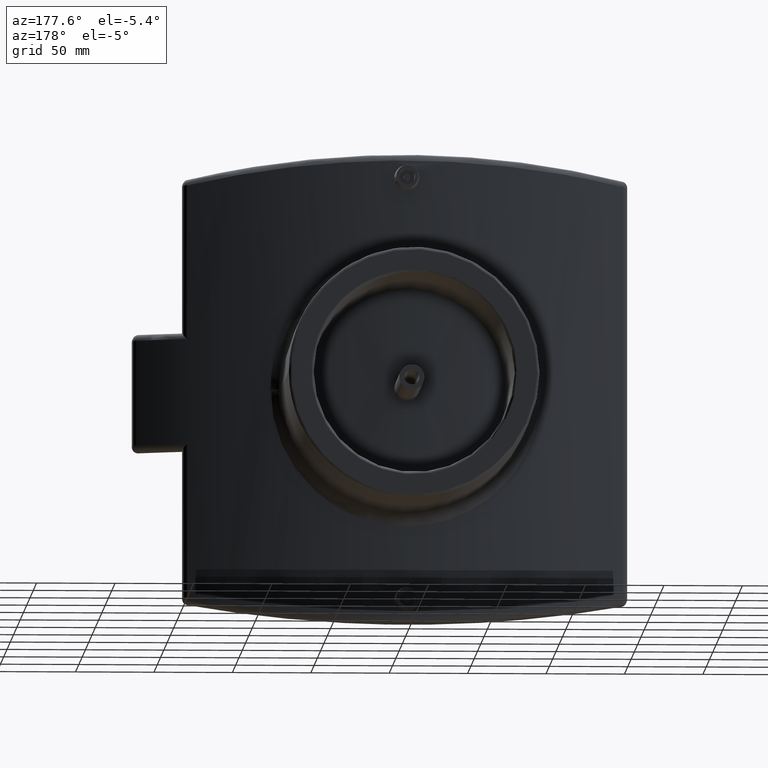
[diagram: clean part render]
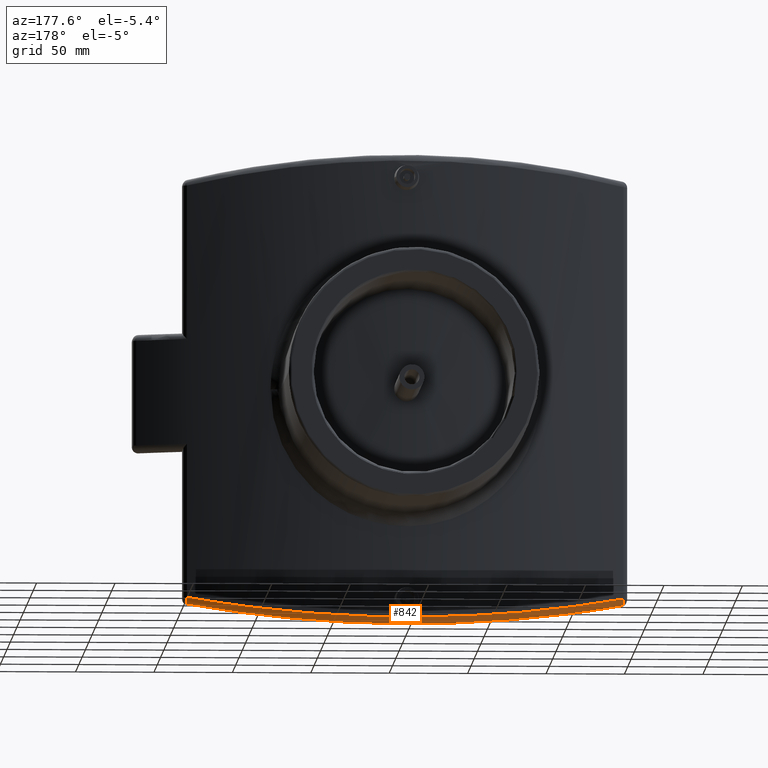
[diagram: same view with one face highlighted and labeled with its STEP entity id]
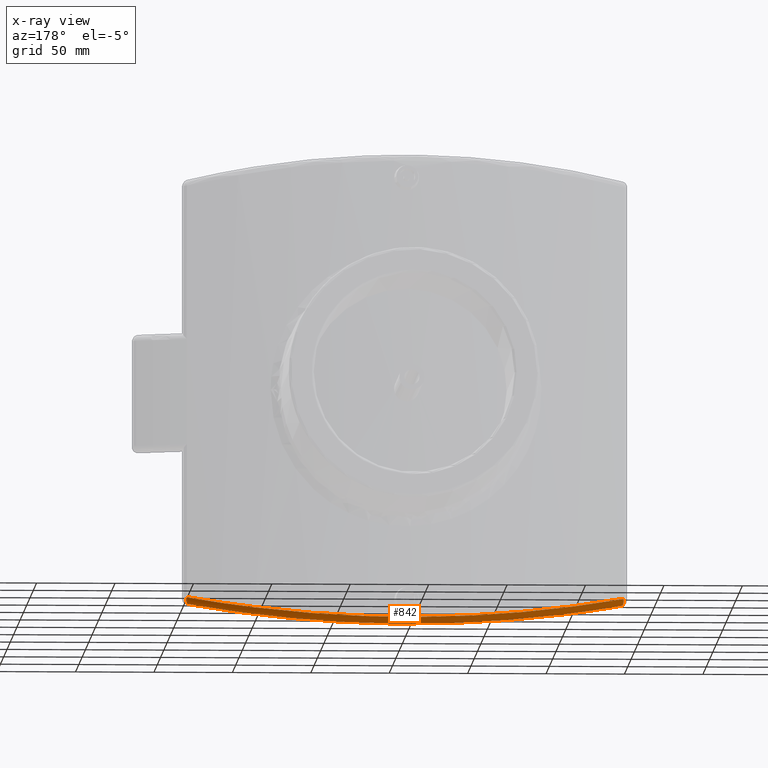
[diagram: x-ray of the same camera — body ghosted, the highlighted face saturated]
A machine part, auxiliary view. The second image highlights one B-rep face of the part: STEP entity #842.
The next image is the same camera in x-ray: the body ghosted, the highlighted face saturated — about 0% of this face is hidden behind the body in this view.
In plain terms, the highlighted face is a freeform B-spline surface patch.
Its self-contained STEP definition (entity closure, byte-faithful):
#90=B_SPLINE_SURFACE_WITH_KNOTS('',3,3,((#1820,#1821,#1822,#1823,#1824,
#1825,#1826,#1827,#1828,#1829),(#1830,#1831,#1832,#1833,#1834,#1835,#1836,
#1837,#1838,#1839),(#1840,#1841,#1842,#1843,#1844,#1845,#1846,#1847,#1848,
#1849),(#1850,#1851,#1852,#1853,#1854,#1855,#1856,#1857,#1858,#1859),(#1860,
#1861,#1862,#1863,#1864,#1865,#1866,#1867,#1868,#1869)),.UNSPECIFIED.,.F.,
 .F.,.F.,(4,1,4),(4,1,1,1,1,1,1,4),(0.,0.571428571428571,1.),(4.41877470251134,
8.45892502407081,12.4990753456303,16.5392256671897,20.5793759887492,24.6195263103087,
28.6596766318681,32.6998269534276),.UNSPECIFIED.);
#97=B_SPLINE_CURVE_WITH_KNOTS('',3,(#1581,#1582,#1583,#1584,#1585,#1586,
#1587,#1588,#1589,#1590),.UNSPECIFIED.,.F.,.F.,(4,1,1,1,1,1,1,4),(-32.6998269534276,
-28.6596766318681,-24.6195263103087,-20.5793759887492,-16.5392256671897,
-12.4990753456303,-8.45892502407081,-4.41877470251134),.UNSPECIFIED.);
#104=B_SPLINE_CURVE_WITH_KNOTS('',3,(#1870,#1871,#1872,#1873,#1874,#1875,
#1876,#1877,#1878,#1879),.UNSPECIFIED.,.F.,.F.,(4,1,1,1,1,1,1,4),(4.41877470251134,
8.45892502407081,12.4990753456303,16.5392256671897,20.5793759887492,24.6195263103087,
28.6596766318681,32.6998269534276),.UNSPECIFIED.);
#205=FACE_OUTER_BOUND('',#292,.T.);
#292=EDGE_LOOP('',(#648,#649,#650,#651));
#353=CIRCLE('',#925,4.00000000000005);
#360=CIRCLE('',#935,3.99999999999998);
#407=VERTEX_POINT('',#1578);
#408=VERTEX_POINT('',#1580);
#428=VERTEX_POINT('',#1787);
#435=VERTEX_POINT('',#1817);
#479=EDGE_CURVE('',#408,#407,#97,.T.);
#500=EDGE_CURVE('',#407,#428,#353,.F.);
#509=EDGE_CURVE('',#435,#408,#360,.F.);
#511=EDGE_CURVE('',#428,#435,#104,.T.);
#648=ORIENTED_EDGE('',*,*,#509,.T.);
#649=ORIENTED_EDGE('',*,*,#479,.T.);
#650=ORIENTED_EDGE('',*,*,#500,.T.);
#651=ORIENTED_EDGE('',*,*,#511,.T.);
#842=ADVANCED_FACE('',(#205),#90,.F.);
#925=AXIS2_PLACEMENT_3D('',#1788,#1096,#1097);
#935=AXIS2_PLACEMENT_3D('',#1818,#1117,#1118);
#1096=DIRECTION('center_axis',(0.924407265742533,-0.328842246100151,0.193220040943536));
#1097=DIRECTION('ref_axis',(0.335158150851585,0.942161883074107,0.));
#1117=DIRECTION('center_axis',(-0.924407265742516,-0.328842246100194,0.193220040943544));
#1118=DIRECTION('ref_axis',(-0.204598832189969,-1.77635683940026E-14,-0.978845911196702));
#1578=CARTESIAN_POINT('',(139.09063260341,390.997181475753,-131.757613074014));
#1580=CARTESIAN_POINT('',(-139.090632603403,390.997181475756,-131.757613074014));
#1581=CARTESIAN_POINT('Ctrl Pts',(-139.090632603403,390.997181475756,-131.757613074014));
#1582=CARTESIAN_POINT('Ctrl Pts',(-126.519711970547,395.469073821966,-134.359866740379));
#1583=CARTESIAN_POINT('Ctrl Pts',(-100.83419503984,403.23924471547,-138.938929959962));
#1584=CARTESIAN_POINT('Ctrl Pts',(-61.0304030310358,411.160253956869,-143.680393743336));
#1585=CARTESIAN_POINT('Ctrl Pts',(-20.4298369698615,415.166726763725,-146.100589001554));
#1586=CARTESIAN_POINT('Ctrl Pts',(20.4299098442966,415.167026397045,-146.100938434617));
#1587=CARTESIAN_POINT('Ctrl Pts',(61.0289804996759,411.160089339475,-143.680141816065));
#1588=CARTESIAN_POINT('Ctrl Pts',(100.833542230267,403.239687862737,-138.939302310592));
#1589=CARTESIAN_POINT('Ctrl Pts',(126.519619840074,395.469106595823,-134.359885811924));
#1590=CARTESIAN_POINT('Ctrl Pts',(139.09063260341,390.997181475753,-131.757613074014));
#1787=CARTESIAN_POINT('',(138.568395328763,387.228533943457,-135.672996718801));
#1788=CARTESIAN_POINT('Origin',(137.750000000004,387.228533943457,-131.757613074014));
#1817=CARTESIAN_POINT('',(-138.568395328756,387.22853394346,-135.672996718801));
#1818=CARTESIAN_POINT('Origin',(-137.749999999996,387.22853394346,-131.757613074014));
#1820=CARTESIAN_POINT('Ctrl Pts',(138.568395328763,387.228533943457,-135.672996718801));
#1821=CARTESIAN_POINT('Ctrl Pts',(126.044582375524,391.657356170803,-138.290729985588));
#1822=CARTESIAN_POINT('Ctrl Pts',(100.454947113531,399.353040268879,-142.897353548292));
#1823=CARTESIAN_POINT('Ctrl Pts',(60.7998377612035,407.197100526564,-147.666359158344));
#1824=CARTESIAN_POINT('Ctrl Pts',(20.3532025906256,411.165416504061,-150.101538126402));
#1825=CARTESIAN_POINT('Ctrl Pts',(-20.3531299898089,411.165119758773,-150.1011866173));
#1826=CARTESIAN_POINT('Ctrl Pts',(-60.8012549514496,407.197263557285,-147.666612582355));
#1827=CARTESIAN_POINT('Ctrl Pts',(-100.45559747203,399.352601392911,-142.896978985466));
#1828=CARTESIAN_POINT('Ctrl Pts',(-126.044674160078,391.657323712839,-138.290710800736));
#1829=CARTESIAN_POINT('Ctrl Pts',(-138.568395328756,387.228533943459,-135.672996718801));
#1830=CARTESIAN_POINT('Ctrl Pts',(138.936796978414,388.309391961419,-135.595993232927));
#1831=CARTESIAN_POINT('Ctrl Pts',(126.385159664184,392.758781403019,-138.227152316652));
#1832=CARTESIAN_POINT('Ctrl Pts',(100.735137128898,400.490850466139,-142.8572107059));
#1833=CARTESIAN_POINT('Ctrl Pts',(60.974102971748,408.374308499324,-147.652975795758));
#1834=CARTESIAN_POINT('Ctrl Pts',(20.412534237463,412.363134098121,-150.102252448013));
#1835=CARTESIAN_POINT('Ctrl Pts',(-20.4124107713291,412.3627426278,-150.101721234607));
#1836=CARTESIAN_POINT('Ctrl Pts',(-60.9756414166447,408.37454028272,-147.653361628698));
#1837=CARTESIAN_POINT('Ctrl Pts',(-100.735610300542,400.490401480757,-142.856819067966));
#1838=CARTESIAN_POINT('Ctrl Pts',(-126.385251652658,392.758748794321,-138.227133033405));
#1839=CARTESIAN_POINT('Ctrl Pts',(-138.936796978407,388.309391961421,-135.595993232927));
#1840=CARTESIAN_POINT('Ctrl Pts',(139.388592970555,390.183696492849,-134.567595695836));
#1841=CARTESIAN_POINT('Ctrl Pts',(126.80263960139,394.667632707745,-137.201822239092));
#1842=CARTESIAN_POINT('Ctrl Pts',(101.076727004417,402.462543670313,-141.839499688927));
#1843=CARTESIAN_POINT('Ctrl Pts',(61.1868009246256,410.412566155935,-146.643431062388));
#1844=CARTESIAN_POINT('Ctrl Pts',(20.484599342122,414.436149555662,-149.097429380408));
#1845=CARTESIAN_POINT('Ctrl Pts',(-20.4845299526619,414.435853947222,-149.097086494211));
#1846=CARTESIAN_POINT('Ctrl Pts',(-61.1882195676673,410.412728205252,-146.643678168481));
#1847=CARTESIAN_POINT('Ctrl Pts',(-101.077398147313,402.462094982775,-141.839121172992));
#1848=CARTESIAN_POINT('Ctrl Pts',(-126.80273184136,394.667599845861,-137.201802933364));
#1849=CARTESIAN_POINT('Ctrl Pts',(-139.388592970548,390.183696492851,-134.567595695836));
#1850=CARTESIAN_POINT('Ctrl Pts',(139.246896479445,390.941593245453,-132.599819814549));
#1851=CARTESIAN_POINT('Ctrl Pts',(126.666476386759,395.422615455558,-135.21156909444));
#1852=CARTESIAN_POINT('Ctrl Pts',(100.957592032247,403.210104162492,-139.808545734055));
#1853=CARTESIAN_POINT('Ctrl Pts',(61.1081867190059,411.150024537137,-144.568198002288));
#1854=CARTESIAN_POINT('Ctrl Pts',(20.4571673391288,415.167497668691,-146.998918939567));
#1855=CARTESIAN_POINT('Ctrl Pts',(-20.4570894164806,415.167148720795,-146.998609428414));
#1856=CARTESIAN_POINT('Ctrl Pts',(-61.1096225822132,411.150225794712,-144.568420445218));
#1857=CARTESIAN_POINT('Ctrl Pts',(-100.958228517906,403.209654149804,-139.808174562168));
#1858=CARTESIAN_POINT('Ctrl Pts',(-126.666568586176,395.42258261503,-135.211549953444));
#1859=CARTESIAN_POINT('Ctrl Pts',(-139.246896479438,390.941593245455,-132.599819814549));
#1860=CARTESIAN_POINT('Ctrl Pts',(139.09063260341,390.997181475753,-131.757613074014));
#1861=CARTESIAN_POINT('Ctrl Pts',(126.519619840074,395.469106595823,-134.359885811924));
#1862=CARTESIAN_POINT('Ctrl Pts',(100.833542230267,403.239687862737,-138.939302310592));
#1863=CARTESIAN_POINT('Ctrl Pts',(61.0289804996759,411.160089339475,-143.680141816065));
#1864=CARTESIAN_POINT('Ctrl Pts',(20.4299098442966,415.167026397045,-146.100938434617));
#1865=CARTESIAN_POINT('Ctrl Pts',(-20.4298369698615,415.166726763725,-146.100589001554));
#1866=CARTESIAN_POINT('Ctrl Pts',(-61.0304030310358,411.160253956869,-143.680393743336));
#1867=CARTESIAN_POINT('Ctrl Pts',(-100.83419503984,403.23924471547,-138.938929959962));
#1868=CARTESIAN_POINT('Ctrl Pts',(-126.519711970547,395.469073821966,-134.359866740379));
#1869=CARTESIAN_POINT('Ctrl Pts',(-139.090632603403,390.997181475756,-131.757613074014));
#1870=CARTESIAN_POINT('Ctrl Pts',(138.568395328763,387.228533943457,-135.672996718801));
#1871=CARTESIAN_POINT('Ctrl Pts',(126.044582375524,391.657356170803,-138.290729985588));
#1872=CARTESIAN_POINT('Ctrl Pts',(100.454947113531,399.353040268879,-142.897353548292));
#1873=CARTESIAN_POINT('Ctrl Pts',(60.7998377612035,407.197100526564,-147.666359158344));
#1874=CARTESIAN_POINT('Ctrl Pts',(20.3532025906256,411.165416504061,-150.101538126402));
#1875=CARTESIAN_POINT('Ctrl Pts',(-20.3531299898089,411.165119758773,-150.1011866173));
#1876=CARTESIAN_POINT('Ctrl Pts',(-60.8012549514496,407.197263557285,-147.666612582355));
#1877=CARTESIAN_POINT('Ctrl Pts',(-100.45559747203,399.352601392911,-142.896978985466));
#1878=CARTESIAN_POINT('Ctrl Pts',(-126.044674160078,391.657323712839,-138.290710800736));
#1879=CARTESIAN_POINT('Ctrl Pts',(-138.568395328756,387.228533943459,-135.672996718801));